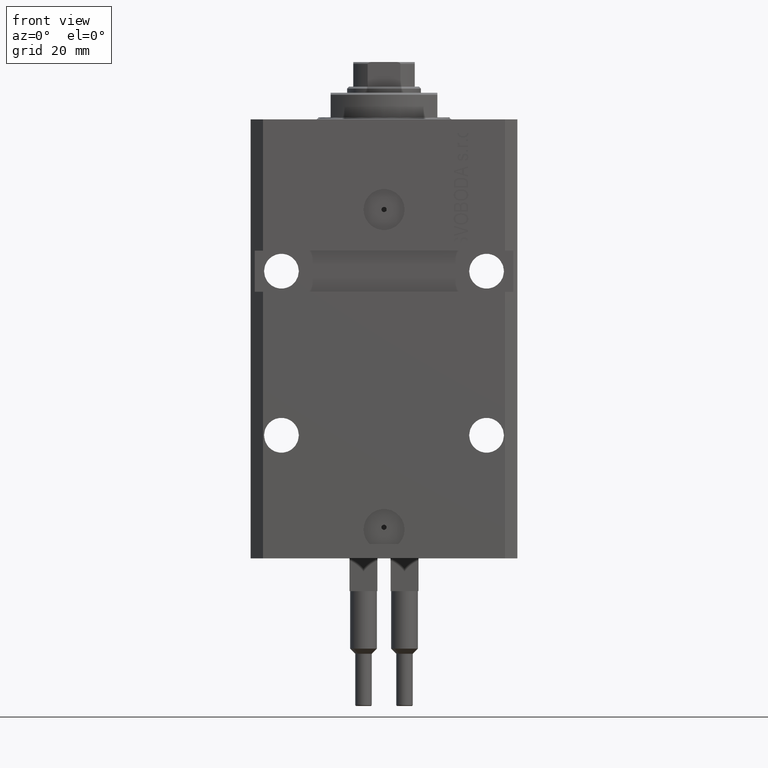
[diagram: clean part render]
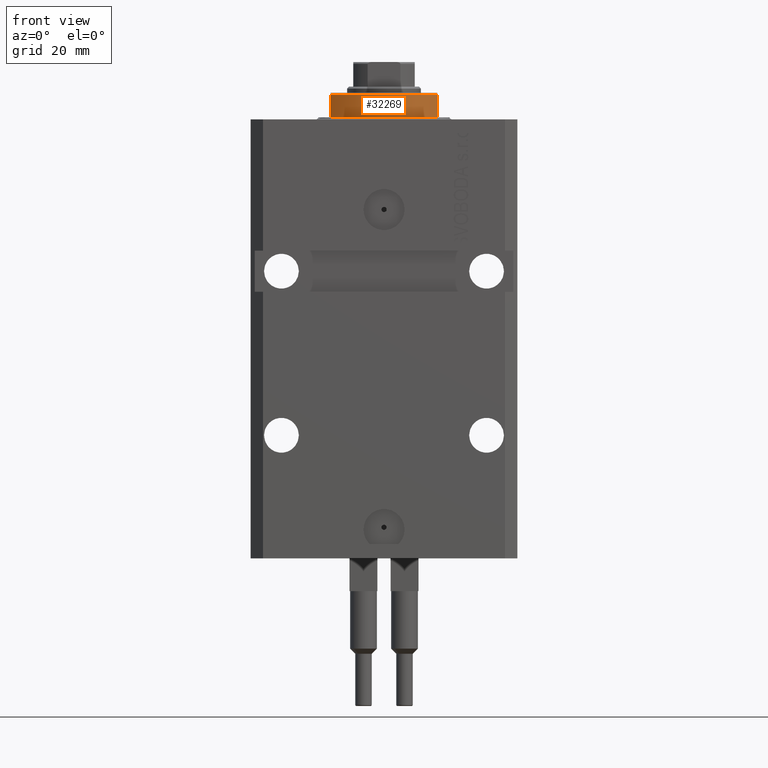
[diagram: same view with one face highlighted and labeled with its STEP entity id]
A machine part, front view. The second image highlights one B-rep face of the part: STEP entity #32269.
In plain terms, the highlighted cylindrical surface (partial cylindrical patch) has radius 16 mm, axis along (0, 0, -1).
Its self-contained STEP definition (entity closure, byte-faithful):
#1237 = ORIENTED_EDGE ( 'NONE', *, *, #47751, .T. ) ;
#1248 = AXIS2_PLACEMENT_3D ( 'NONE', #34009, #41459, #42428 ) ;
#6393 = AXIS2_PLACEMENT_3D ( 'NONE', #47069, #15290, #44824 ) ;
#7978 = ORIENTED_EDGE ( 'NONE', *, *, #35810, .T. ) ;
#9275 = LINE ( 'NONE', #24408, #34646 ) ;
#10938 = ORIENTED_EDGE ( 'NONE', *, *, #32818, .F. ) ;
#12576 = VERTEX_POINT ( 'NONE', #45224 ) ;
#12763 = LINE ( 'NONE', #16731, #24340 ) ;
#15290 = DIRECTION ( 'NONE',  ( 0.000000000000000000, 0.000000000000000000, 1.000000000000000000 ) ) ;
#16731 = CARTESIAN_POINT ( 'NONE',  ( 13.00000000000000000, -9.327379053088813876, -6.500000000000000000 ) ) ;
#17983 = DIRECTION ( 'NONE',  ( -0.000000000000000000, -0.000000000000000000, -1.000000000000000000 ) ) ;
#19645 = CARTESIAN_POINT ( 'NONE',  ( -13.00000000000000000, -9.327379053088815652, -6.000000000000023981 ) ) ;
#21250 = VERTEX_POINT ( 'NONE', #41199 ) ;
#21713 = CARTESIAN_POINT ( 'NONE',  ( 0.000000000000000000, 0.000000000000000000, -0.4999999999999995559 ) ) ;
#22453 = DIRECTION ( 'NONE',  ( 1.000000000000000000, 0.000000000000000000, 0.000000000000000000 ) ) ;
#22687 = VERTEX_POINT ( 'NONE', #32655 ) ;
#24340 = VECTOR ( 'NONE', #43264, 1000.000000000000000 ) ;
#24408 = CARTESIAN_POINT ( 'NONE',  ( -13.00000000000000000, -9.327379053088813876, -6.500000000000000000 ) ) ;
#27301 = CYLINDRICAL_SURFACE ( 'NONE', #1248, 16.00000000000000000 ) ;
#28608 = EDGE_CURVE ( 'NONE', #12576, #21250, #38438, .T. ) ;
#30528 = FACE_OUTER_BOUND ( 'NONE', #48220, .T. ) ;
#31301 = ORIENTED_EDGE ( 'NONE', *, *, #28608, .T. ) ;
#31760 = CIRCLE ( 'NONE', #6393, 16.00000000000000000 ) ;
#32269 = ADVANCED_FACE ( 'NONE', ( #30528 ), #27301, .T. ) ;
#32655 = CARTESIAN_POINT ( 'NONE',  ( 13.00000000000000000, -9.327379053088815652, -6.000000000000023981 ) ) ;
#32818 = EDGE_CURVE ( 'NONE', #12576, #22687, #12763, .T. ) ;
#32915 = AXIS2_PLACEMENT_3D ( 'NONE', #21713, #17983, #22453 ) ;
#34009 = CARTESIAN_POINT ( 'NONE',  ( 0.000000000000000000, 0.000000000000000000, -6.500000000000000000 ) ) ;
#34646 = VECTOR ( 'NONE', #35577, 1000.000000000000000 ) ;
#35577 = DIRECTION ( 'NONE',  ( 0.000000000000000000, 0.000000000000000000, -1.000000000000000000 ) ) ;
#35810 = EDGE_CURVE ( 'NONE', #21250, #40533, #9275, .T. ) ;
#38438 = CIRCLE ( 'NONE', #32915, 16.00000000000000000 ) ;
#40533 = VERTEX_POINT ( 'NONE', #19645 ) ;
#41199 = CARTESIAN_POINT ( 'NONE',  ( -13.00000000000000000, -9.327379053088815652, -0.4999999999999995559 ) ) ;
#41459 = DIRECTION ( 'NONE',  ( -0.000000000000000000, -0.000000000000000000, 1.000000000000000000 ) ) ;
#42428 = DIRECTION ( 'NONE',  ( 1.000000000000000000, 0.000000000000000000, 0.000000000000000000 ) ) ;
#43264 = DIRECTION ( 'NONE',  ( 0.000000000000000000, 0.000000000000000000, -1.000000000000000000 ) ) ;
#44824 = DIRECTION ( 'NONE',  ( -1.000000000000000000, 0.000000000000000000, 0.000000000000000000 ) ) ;
#45224 = CARTESIAN_POINT ( 'NONE',  ( 13.00000000000000000, -9.327379053088815652, -0.4999999999999995559 ) ) ;
#47069 = CARTESIAN_POINT ( 'NONE',  ( 0.000000000000000000, 0.000000000000000000, -6.000000000000023981 ) ) ;
#47751 = EDGE_CURVE ( 'NONE', #40533, #22687, #31760, .T. ) ;
#48220 = EDGE_LOOP ( 'NONE', ( #10938, #31301, #7978, #1237 ) ) ;